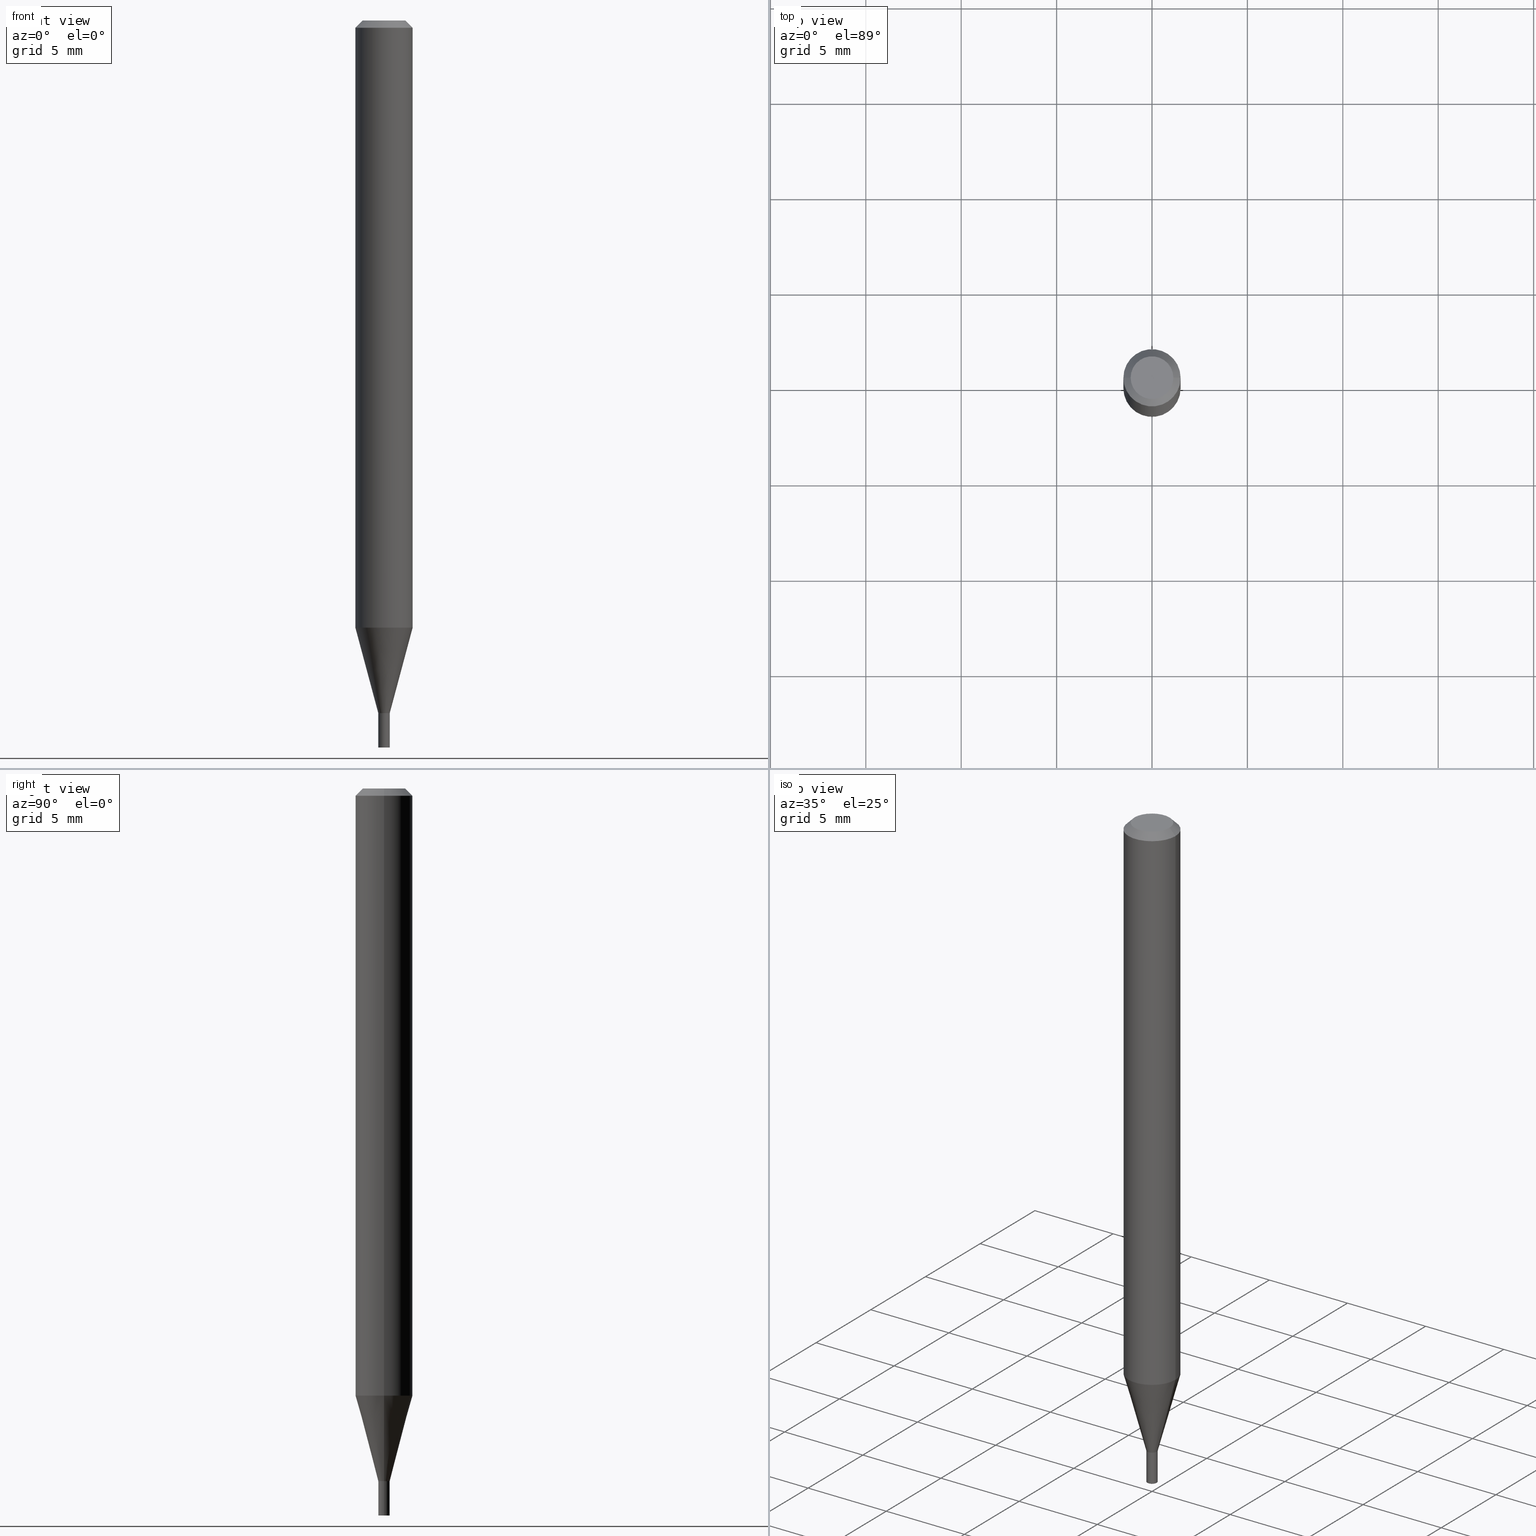
[diagram: canonical four-view strip — front | top / right | iso, engineering-drawing reading convention]
A machine part, canonical four-view strip (front | top / right | iso — engineering-drawing reading convention). The complete STEP part file that produces these views, byte-faithful:
ISO-10303-21;
HEADER;
FILE_DESCRIPTION (( 'STEP AP203' ),
    '1' );
FILE_NAME ('05095.STEP',
    '2024-03-14T17:50:56',
    ( '' ),
    ( '' ),
    'SwSTEP 2.0',
    'SolidWorks 2023',
    '' );
FILE_SCHEMA (( 'CONFIG_CONTROL_DESIGN' ));
ENDSEC;

DATA;
#1 = DIRECTION ( 'NONE',  ( -2.445468806185136877E-29, 3.491481338843145188E-15, 1.000000000000000000 ) ) ;
#2 = EDGE_LOOP ( 'NONE', ( #158, #462, #79, #194 ) ) ;
#3 = VERTEX_POINT ( 'NONE', #296 ) ;
#4 = CARTESIAN_POINT ( 'NONE',  ( 3.668203209277704895E-29, -5.237222008264718177E-15, -1.500000000000000222 ) ) ;
#5 = AXIS2_PLACEMENT_3D ( 'NONE', #250, #393, #71 ) ;
#6 =( GEOMETRIC_REPRESENTATION_CONTEXT ( 3 ) GLOBAL_UNCERTAINTY_ASSIGNED_CONTEXT ( ( #282 ) ) GLOBAL_UNIT_ASSIGNED_CONTEXT ( ( #381, #209, #240 ) ) REPRESENTATION_CONTEXT ( 'NONE', 'WORKASPACE' ) );
#7 = APPROVAL_PERSON_ORGANIZATION ( #229, #215, #129 ) ;
#8 = EDGE_CURVE ( 'NONE', #189, #307, #401, .T. ) ;
#9 = DATE_AND_TIME ( #342, #114 ) ;
#10 = APPLICATION_CONTEXT ( 'configuration controlled 3d designs of mechanical parts and assemblies' ) ;
#11 = PERSON_AND_ORGANIZATION_ROLE ( 'creator' ) ;
#12 = CLOSED_SHELL ( 'NONE', ( #199, #230, #245, #41, #95, #118, #313, #439, #344, #294, #72, #156 ) ) ;
#13 = VECTOR ( 'NONE', #238, 39.37007874015748143 ) ;
#14 = DIRECTION ( 'NONE',  ( 1.000000000000000000, -6.982962677686266711E-15, 4.876176775795935793E-29 ) ) ;
#15 = CC_DESIGN_APPROVAL ( #38, ( #338 ) ) ;
#16 = DIRECTION ( 'NONE',  ( -2.445468806185136597E-29, 3.491481338843145583E-15, 1.000000000000000000 ) ) ;
#17 = PERSON_AND_ORGANIZATION ( #78, #69 ) ;
#18 = CARTESIAN_POINT ( 'NONE',  ( 3.493596736516086700E-29, -4.987930240671318790E-15, -1.428600000000000092 ) ) ;
#19 = DIRECTION ( 'NONE',  ( -2.445468806185136877E-29, 3.491481338843145188E-15, 1.000000000000000000 ) ) ;
#20 = APPROVAL_STATUS ( 'not_yet_approved' ) ;
#21 = APPLICATION_PROTOCOL_DEFINITION ( 'international standard', 'config_control_design', 1994, #10 ) ;
#22 = EDGE_LOOP ( 'NONE', ( #430, #164 ) ) ;
#23 = PLANE ( 'NONE',  #24 ) ;
#24 = AXIS2_PLACEMENT_3D ( 'NONE', #106, #86, #299 ) ;
#25 = CARTESIAN_POINT ( 'NONE',  ( 3.668203209277704895E-29, -5.237222008264718177E-15, -1.500000000000000222 ) ) ;
#26 = PLANE ( 'NONE',  #361 ) ;
#27 = LINE ( 'NONE', #183, #171 ) ;
#28 = CARTESIAN_POINT ( 'NONE',  ( -0.05904999999999999832, 3.599717260347268549E-16, -0.01499999999999999944 ) ) ;
#29 = DIRECTION ( 'NONE',  ( -2.445468806185136877E-29, 3.491481338843145188E-15, 1.000000000000000000 ) ) ;
#30 = LINE ( 'NONE', #457, #134 ) ;
#31 = EDGE_LOOP ( 'NONE', ( #326, #46, #376, #188 ) ) ;
#32 = DIRECTION ( 'NONE',  ( 1.000000000000000000, -6.982962677686266711E-15, 4.876176775795935793E-29 ) ) ;
#33 = ADVANCED_FACE ( 'NONE', ( #247 ), #26, .F. ) ;
#34 = CIRCLE ( 'NONE', #304, 0.05904999999999999832 ) ;
#35 = ORIENTED_EDGE ( 'NONE', *, *, #333, .T. ) ;
#36 = DIRECTION ( 'NONE',  ( -2.445468806185136877E-29, 3.491481338843145188E-15, 1.000000000000000000 ) ) ;
#37 = ORIENTED_EDGE ( 'NONE', *, *, #60, .F. ) ;
#38 = APPROVAL ( #410, 'UNSPECIFIED' ) ;
#39 = DIRECTION ( 'NONE',  ( -2.445468806185136597E-29, 3.491481338843145583E-15, 1.000000000000000000 ) ) ;
#40 = ORIENTED_EDGE ( 'NONE', *, *, #395, .T. ) ;
#41 = ADVANCED_FACE ( 'NONE', ( #323 ), #452, .T. ) ;
#42 = CC_DESIGN_PERSON_AND_ORGANIZATION_ASSIGNMENT ( #142, #48, ( #338 ) ) ;
#43 = CONICAL_SURFACE ( 'NONE', #5, 0.01130000000000000102, 0.7853981633974718157 ) ;
#44 = CONICAL_SURFACE ( 'NONE', #180, 0.05904999999999999832, 0.7853981633974523868 ) ;
#45 = PERSON_AND_ORGANIZATION_ROLE ( 'design_owner' ) ;
#46 = ORIENTED_EDGE ( 'NONE', *, *, #221, .T. ) ;
#47 = DIRECTION ( 'NONE',  ( 0.2588190451025216832, 1.565188264969619798E-15, 0.9659258262890679791 ) ) ;
#48 = PERSON_AND_ORGANIZATION_ROLE ( 'classification_officer' ) ;
#49 = CARTESIAN_POINT ( 'NONE',  ( -0.05904999999999999832, 4.195754854663391478E-16, -2.904631170795521892E-30 ) ) ;
#50 = EDGE_LOOP ( 'NONE', ( #124, #225, #186, #360 ) ) ;
#51 = SHAPE_DEFINITION_REPRESENTATION ( #125, #220 ) ;
#52 = EDGE_CURVE ( 'NONE', #85, #117, #346, .T. ) ;
#53 = ORIENTED_EDGE ( 'NONE', *, *, #402, .T. ) ;
#54 = AXIS2_PLACEMENT_3D ( 'NONE', #4, #16, #173 ) ;
#55 = CARTESIAN_POINT ( 'NONE',  ( 0.05904999999999999832, -4.123439461173740327E-16, 2.879382386107500220E-30 ) ) ;
#56 = DATE_TIME_ROLE ( 'creation_date' ) ;
#57 = FACE_OUTER_BOUND ( 'NONE', #461, .T. ) ;
#58 = DIRECTION ( 'NONE',  ( 2.445468806185136597E-29, -3.491481338843145583E-15, -1.000000000000000000 ) ) ;
#59 = APPROVAL_DATE_TIME ( #305, #38 ) ;
#60 = EDGE_CURVE ( 'NONE', #235, #256, #30, .T. ) ;
#61 = DIRECTION ( 'NONE',  ( 1.000000000000000000, -6.982962677686298265E-15, 0.000000000000000000 ) ) ;
#62 = DIRECTION ( 'NONE',  ( -2.445468806185136597E-29, 3.491481338843145583E-15, 1.000000000000000000 ) ) ;
#63 = LINE ( 'NONE', #394, #349 ) ;
#64 = PRODUCT_DEFINITION ( 'UNKNOWN', '', #447, #300 ) ;
#65 = CONICAL_SURFACE ( 'NONE', #228, 0.01179999999999992340, 0.2617993877991502960 ) ;
#66 = MECHANICAL_CONTEXT ( 'NONE', #10, 'mechanical' ) ;
#67 = AXIS2_PLACEMENT_3D ( 'NONE', #18, #274, #368 ) ;
#68 = VECTOR ( 'NONE', #83, 39.37007874015748854 ) ;
#69 = ORGANIZATION ( 'UNSPECIFIED', 'UNSPECIFIED', '' ) ;
#70 = DIRECTION ( 'NONE',  ( 1.000000000000000000, -6.982962677686263555E-15, 0.000000000000000000 ) ) ;
#71 = DIRECTION ( 'NONE',  ( 1.000000000000000000, -6.982962677686254878E-15, 0.000000000000000000 ) ) ;
#72 = ADVANCED_FACE ( 'NONE', ( #285 ), #43, .T. ) ;
#73 = EDGE_CURVE ( 'NONE', #176, #307, #445, .T. ) ;
#74 = CIRCLE ( 'NONE', #258, 0.04404999999999999888 ) ;
#75 = AXIS2_PLACEMENT_3D ( 'NONE', #153, #213, #350 ) ;
#76 = ORIENTED_EDGE ( 'NONE', *, *, #73, .F. ) ;
#77 = EDGE_CURVE ( 'NONE', #343, #85, #74, .T. ) ;
#78 = PERSON ( 'UNSPECIFIED', 'UNSPECIFIED', 'UNSPECIFIED', ('UNSPECIFIED'), ('UNSPECIFIED'), ('UNSPECIFIED') ) ;
#79 = ORIENTED_EDGE ( 'NONE', *, *, #366, .T. ) ;
#80 = ORIENTED_EDGE ( 'NONE', *, *, #402, .F. ) ;
#81 = ORIENTED_EDGE ( 'NONE', *, *, #151, .T. ) ;
#82 = AXIS2_PLACEMENT_3D ( 'NONE', #270, #411, #97 ) ;
#83 = DIRECTION ( 'NONE',  ( 0.7071067811865503483, -7.319954787623265512E-15, -0.7071067811865445751 ) ) ;
#84 = DIRECTION ( 'NONE',  ( -2.445468806185136597E-29, 3.491481338843145583E-15, 1.000000000000000000 ) ) ;
#85 = VERTEX_POINT ( 'NONE', #340 ) ;
#86 = DIRECTION ( 'NONE',  ( -2.438088387897960049E-29, 3.491481338843145188E-15, 1.000000000000000000 ) ) ;
#87 = DIRECTION ( 'NONE',  ( 1.000000000000000000, -6.982962677686263555E-15, 0.000000000000000000 ) ) ;
#88 = PERSON_AND_ORGANIZATION_ROLE ( 'creator' ) ;
#89 = FACE_OUTER_BOUND ( 'NONE', #50, .T. ) ;
#90 = AXIS2_PLACEMENT_3D ( 'NONE', #385, #201, #301 ) ;
#91 = AXIS2_PLACEMENT_3D ( 'NONE', #441, #263, #231 ) ;
#92 = CARTESIAN_POINT ( 'NONE',  ( 0.000000000000000000, 0.000000000000000000, 0.000000000000000000 ) ) ;
#93 = ORIENTED_EDGE ( 'NONE', *, *, #324, .T. ) ;
#94 = APPROVAL_DATE_TIME ( #99, #215 ) ;
#95 = ADVANCED_FACE ( 'NONE', ( #57 ), #65, .T. ) ;
#96 = DIRECTION ( 'NONE',  ( 1.000000000000000000, -6.982962677686265922E-15, 4.888540261209747396E-29 ) ) ;
#97 = DIRECTION ( 'NONE',  ( 1.000000000000000000, -6.982962677686266711E-15, 0.000000000000000000 ) ) ;
#98 = LINE ( 'NONE', #55, #165 ) ;
#99 = DATE_AND_TIME ( #276, #144 ) ;
#100 = DIRECTION ( 'NONE',  ( -2.445468806185136597E-29, 3.491481338843145583E-15, 1.000000000000000000 ) ) ;
#101 = PRODUCT ( '05095', '05095', '', ( #66 ) ) ;
#102 = AXIS2_PLACEMENT_3D ( 'NONE', #261, #363, #87 ) ;
#103 = EDGE_CURVE ( 'NONE', #85, #343, #266, .T. ) ;
#104 = APPROVAL_PERSON_ORGANIZATION ( #262, #378, #105 ) ;
#105 = APPROVAL_ROLE ( '' ) ;
#106 = CARTESIAN_POINT ( 'NONE',  ( 3.494819470919178941E-29, -4.989675981340739504E-15, -1.429100000000000037 ) ) ;
#107 = FACE_OUTER_BOUND ( 'NONE', #31, .T. ) ;
#108 = FACE_OUTER_BOUND ( 'NONE', #357, .T. ) ;
#109 = ORIENTED_EDGE ( 'NONE', *, *, #155, .F. ) ;
#110 = MANIFOLD_SOLID_BREP ( 'Body-Move/Copy2[2]', #12 ) ;
#111 = DIRECTION ( 'NONE',  ( -0.2588190451025216832, 5.211531920934551831E-15, 0.9659258262890679791 ) ) ;
#112 = ORIENTED_EDGE ( 'NONE', *, *, #320, .F. ) ;
#113 = CIRCLE ( 'NONE', #75, 0.01180000000000000146 ) ;
#114 = LOCAL_TIME ( 13, 50, 56.00000000000000000, #177 ) ;
#115 = LINE ( 'NONE', #358, #418 ) ;
#116 = DIRECTION ( 'NONE',  ( -2.445468806185136597E-29, 3.491481338843145583E-15, 1.000000000000000000 ) ) ;
#117 = VERTEX_POINT ( 'NONE', #207 ) ;
#118 = ADVANCED_FACE ( 'NONE', ( #89 ), #341, .T. ) ;
#119 = AXIS2_PLACEMENT_3D ( 'NONE', #224, #39, #384 ) ;
#120 = FACE_OUTER_BOUND ( 'NONE', #325, .T. ) ;
#121 = ORIENTED_EDGE ( 'NONE', *, *, #374, .F. ) ;
#122 = ORIENTED_EDGE ( 'NONE', *, *, #211, .T. ) ;
#123 = FACE_OUTER_BOUND ( 'NONE', #399, .T. ) ;
#124 = ORIENTED_EDGE ( 'NONE', *, *, #8, .F. ) ;
#125 = PRODUCT_DEFINITION_SHAPE ( 'NONE', 'NONE',  #64 ) ;
#126 = CARTESIAN_POINT ( 'NONE',  ( 3.494819470919178941E-29, -4.989675981340739504E-15, -1.429100000000000037 ) ) ;
#127 = FACE_OUTER_BOUND ( 'NONE', #437, .T. ) ;
#128 = DIRECTION ( 'NONE',  ( 1.000000000000000000, -6.982962677686266711E-15, 4.876176775795936353E-29 ) ) ;
#129 = APPROVAL_ROLE ( '' ) ;
#130 =( LENGTH_UNIT ( ) NAMED_UNIT ( * ) SI_UNIT ( $, .METRE. ) );
#131 = CARTESIAN_POINT ( 'NONE',  ( 3.494819470919178941E-29, -4.989675981340739504E-15, -1.429100000000000037 ) ) ;
#132 = DIRECTION ( 'NONE',  ( -2.445468806185136597E-29, 3.491481338843145583E-15, 1.000000000000000000 ) ) ;
#133 = COORDINATED_UNIVERSAL_TIME_OFFSET ( 5, 0, .BEHIND. ) ;
#134 = VECTOR ( 'NONE', #149, 39.37007874015748143 ) ;
#135 = CIRCLE ( 'NONE', #389, 0.01180000000000000146 ) ;
#136 = CARTESIAN_POINT ( 'NONE',  ( 0.01179999999999992340, -5.070329200268016125E-15, -1.428600000000000092 ) ) ;
#137 = APPROVAL_PERSON_ORGANIZATION ( #383, #38, #373 ) ;
#138 = CARTESIAN_POINT ( 'NONE',  ( 0.05904999999999999832, -4.574846268510561447E-16, -0.01499999999999999944 ) ) ;
#139 = COORDINATED_UNIVERSAL_TIME_OFFSET ( 5, 0, .BEHIND. ) ;
#140 = EDGE_CURVE ( 'NONE', #256, #214, #406, .T. ) ;
#141 = ORIENTED_EDGE ( 'NONE', *, *, #73, .T. ) ;
#142 = PERSON_AND_ORGANIZATION ( #78, #69 ) ;
#143 = AXIS2_PLACEMENT_3D ( 'NONE', #145, #390, #246 ) ;
#144 = LOCAL_TIME ( 13, 50, 56.00000000000000000, #409 ) ;
#145 = CARTESIAN_POINT ( 'NONE',  ( 8.239895959673289540E-17, 0.01179999999999501066, -1.429100000000000037 ) ) ;
#146 = CARTESIAN_POINT ( 'NONE',  ( -0.01179999999999992340, -4.904086197851627524E-15, -1.428600000000000092 ) ) ;
#147 = DIRECTION ( 'NONE',  ( 1.000000000000000000, -6.982962677686298265E-15, 0.000000000000000000 ) ) ;
#148 = CARTESIAN_POINT ( 'NONE',  ( 3.668203209277705088E-31, -5.237222008264718399E-17, -0.01499999999999999944 ) ) ;
#149 = DIRECTION ( 'NONE',  ( -0.7071067811865642261, 7.493145998870414114E-15, 0.7071067811865309194 ) ) ;
#150 = CARTESIAN_POINT ( 'NONE',  ( 0.000000000000000000, 0.000000000000000000, 0.000000000000000000 ) ) ;
#151 = EDGE_CURVE ( 'NONE', #235, #433, #453, .T. ) ;
#152 = AXIS2_PLACEMENT_3D ( 'NONE', #218, #116, #147 ) ;
#153 = CARTESIAN_POINT ( 'NONE',  ( 3.494819470919178941E-29, -4.989675981340739504E-15, -1.429100000000000037 ) ) ;
#154 = DIRECTION ( 'NONE',  ( 0.7071067811865642261, -2.468850131082431399E-15, 0.7071067811865309194 ) ) ;
#155 = EDGE_CURVE ( 'NONE', #189, #248, #198, .T. ) ;
#156 = ADVANCED_FACE ( 'NONE', ( #272 ), #450, .F. ) ;
#157 = ORIENTED_EDGE ( 'NONE', *, *, #398, .T. ) ;
#158 = ORIENTED_EDGE ( 'NONE', *, *, #398, .F. ) ;
#159 = CIRCLE ( 'NONE', #152, 0.01180000000000000146 ) ;
#160 = ORIENTED_EDGE ( 'NONE', *, *, #281, .T. ) ;
#161 = ORIENTED_EDGE ( 'NONE', *, *, #103, .F. ) ;
#162 = ADVANCED_FACE ( 'NONE', ( #412 ), #234, .T. ) ;
#163 = VERTEX_POINT ( 'NONE', #271 ) ;
#164 = ORIENTED_EDGE ( 'NONE', *, *, #455, .F. ) ;
#165 = VECTOR ( 'NONE', #19, 39.37007874015748143 ) ;
#166 = CARTESIAN_POINT ( 'NONE',  ( 0.01130000000000000102, -5.068583459598594621E-15, -1.429100000000000037 ) ) ;
#167 = PERSON_AND_ORGANIZATION ( #78, #69 ) ;
#168 = EDGE_CURVE ( 'NONE', #176, #187, #98, .T. ) ;
#169 = CALENDAR_DATE ( 2024, 14, 3 ) ;
#170 = AXIS2_PLACEMENT_3D ( 'NONE', #310, #100, #242 ) ;
#171 = VECTOR ( 'NONE', #29, 39.37007874015748143 ) ;
#172 = ORIENTED_EDGE ( 'NONE', *, *, #333, .F. ) ;
#173 = DIRECTION ( 'NONE',  ( 1.000000000000000000, -6.982962677686298265E-15, 0.000000000000000000 ) ) ;
#174 = PERSON_AND_ORGANIZATION ( #78, #69 ) ;
#175 = CARTESIAN_POINT ( 'NONE',  ( 0.05904999999999999832, -4.786334200759217729E-15, -1.252760599342370940 ) ) ;
#176 = VERTEX_POINT ( 'NONE', #175 ) ;
#177 = COORDINATED_UNIVERSAL_TIME_OFFSET ( 5, 0, .BEHIND. ) ;
#178 = CARTESIAN_POINT ( 'NONE',  ( 0.000000000000000000, 0.000000000000000000, 0.000000000000000000 ) ) ;
#179 = CARTESIAN_POINT ( 'NONE',  ( -0.01130000000000000102, -4.906735425025737936E-15, -1.429100000000000037 ) ) ;
#180 = AXIS2_PLACEMENT_3D ( 'NONE', #337, #193, #332 ) ;
#181 = CC_DESIGN_APPROVAL ( #378, ( #64 ) ) ;
#182 = CARTESIAN_POINT ( 'NONE',  ( 3.576687321579069994E-29, -5.368277968210015545E-15, -1.500000000000000222 ) ) ;
#183 = CARTESIAN_POINT ( 'NONE',  ( 0.01179999999999992340, -8.239895959669740898E-17, 5.753888595439167115E-31 ) ) ;
#184 = CC_DESIGN_PERSON_AND_ORGANIZATION_ASSIGNMENT ( #174, #415, ( #447 ) ) ;
#185 = CIRCLE ( 'NONE', #335, 0.05904999999999999832 ) ;
#186 = ORIENTED_EDGE ( 'NONE', *, *, #320, .T. ) ;
#187 = VERTEX_POINT ( 'NONE', #311 ) ;
#188 = ORIENTED_EDGE ( 'NONE', *, *, #52, .F. ) ;
#189 = VERTEX_POINT ( 'NONE', #417 ) ;
#190 = CIRCLE ( 'NONE', #424, 0.01130000000000000102 ) ;
#191 = LOCAL_TIME ( 13, 50, 56.00000000000000000, #139 ) ;
#192 = CARTESIAN_POINT ( 'NONE',  ( 0.01179999999999992340, -5.072074940937436839E-15, -1.429100000000000037 ) ) ;
#193 = DIRECTION ( 'NONE',  ( 2.445468806185136597E-29, -3.491481338843145583E-15, -1.000000000000000000 ) ) ;
#194 = ORIENTED_EDGE ( 'NONE', *, *, #316, .T. ) ;
#195 = CC_DESIGN_PERSON_AND_ORGANIZATION_ASSIGNMENT ( #167, #11, ( #447 ) ) ;
#196 = ORIENTED_EDGE ( 'NONE', *, *, #219, .T. ) ;
#197 = CYLINDRICAL_SURFACE ( 'NONE', #212, 0.05904999999999999832 ) ;
#198 = CIRCLE ( 'NONE', #278, 0.01179999999999992340 ) ;
#199 = ADVANCED_FACE ( 'NONE', ( #322 ), #318, .F. ) ;
#200 = CC_DESIGN_DATE_AND_TIME_ASSIGNMENT ( #268, #302, ( #338 ) ) ;
#201 = DIRECTION ( 'NONE',  ( -2.445468806185136597E-29, 3.491481338843145583E-15, 1.000000000000000000 ) ) ;
#202 = ORIENTED_EDGE ( 'NONE', *, *, #52, .T. ) ;
#203 = VECTOR ( 'NONE', #111, 39.37007874015748143 ) ;
#204 = CIRCLE ( 'NONE', #82, 0.05904999999999999832 ) ;
#205 = APPROVAL_STATUS ( 'not_yet_approved' ) ;
#206 = CARTESIAN_POINT ( 'NONE',  ( 0.01180000000000000146, -5.319620967861417089E-15, -1.500000000000000222 ) ) ;
#207 = CARTESIAN_POINT ( 'NONE',  ( -0.05904999999999999832, -1.793605751895906043E-15, -0.01499999999999999944 ) ) ;
#208 = DIRECTION ( 'NONE',  ( -1.000000000000000000, 6.982962677686266711E-15, 0.000000000000000000 ) ) ;
#209 =( NAMED_UNIT ( * ) PLANE_ANGLE_UNIT ( ) SI_UNIT ( $, .RADIAN. ) );
#210 = PLANE ( 'NONE',  #143 ) ;
#211 = EDGE_CURVE ( 'NONE', #307, #117, #364, .T. ) ;
#212 = AXIS2_PLACEMENT_3D ( 'NONE', #336, #84, #128 ) ;
#213 = DIRECTION ( 'NONE',  ( -2.445468806185136597E-29, 3.491481338843145583E-15, 1.000000000000000000 ) ) ;
#214 = VERTEX_POINT ( 'NONE', #136 ) ;
#215 = APPROVAL ( #205, 'UNSPECIFIED' ) ;
#216 = CARTESIAN_POINT ( 'NONE',  ( 3.063586967309564449E-29, -4.373990254641843598E-15, -1.252760599342370940 ) ) ;
#217 = ORIENTED_EDGE ( 'NONE', *, *, #239, .T. ) ;
#218 = CARTESIAN_POINT ( 'NONE',  ( 3.494819470919178941E-29, -4.989675981340739504E-15, -1.429100000000000037 ) ) ;
#219 = EDGE_CURVE ( 'NONE', #117, #187, #204, .T. ) ;
#220 = ADVANCED_BREP_SHAPE_REPRESENTATION ( '05095', ( #407, #110, #91 ), #6 ) ;
#221 = EDGE_CURVE ( 'NONE', #343, #187, #379, .T. ) ;
#222 = ORIENTED_EDGE ( 'NONE', *, *, #151, .F. ) ;
#223 = AXIS2_PLACEMENT_3D ( 'NONE', #353, #388, #319 ) ;
#224 = CARTESIAN_POINT ( 'NONE',  ( 3.494819470919178941E-29, -4.989675981340739504E-15, -1.429100000000000037 ) ) ;
#225 = ORIENTED_EDGE ( 'NONE', *, *, #155, .T. ) ;
#226 = ORIENTED_EDGE ( 'NONE', *, *, #103, .T. ) ;
#227 = LINE ( 'NONE', #192, #269 ) ;
#228 = AXIS2_PLACEMENT_3D ( 'NONE', #131, #264, #380 ) ;
#229 = PERSON_AND_ORGANIZATION ( #78, #69 ) ;
#230 = ADVANCED_FACE ( 'NONE', ( #127 ), #436, .T. ) ;
#231 = DIRECTION ( 'NONE',  ( 1.000000000000000000, 0.000000000000000000, 0.000000000000000000 ) ) ;
#232 = CIRCLE ( 'NONE', #54, 0.01180000000000000146 ) ;
#233 = CARTESIAN_POINT ( 'NONE',  ( 3.494819470919178941E-29, -4.989675981340739504E-15, -1.429100000000000037 ) ) ;
#234 = CYLINDRICAL_SURFACE ( 'NONE', #465, 0.01180000000000000146 ) ;
#235 = VERTEX_POINT ( 'NONE', #179 ) ;
#236 = COORDINATED_UNIVERSAL_TIME_OFFSET ( 5, 0, .BEHIND. ) ;
#237 = DIRECTION ( 'NONE',  ( -2.445468806185136597E-29, 3.491481338843145583E-15, 1.000000000000000000 ) ) ;
#238 = DIRECTION ( 'NONE',  ( -2.445468806185136877E-29, 3.491481338843145188E-15, 1.000000000000000000 ) ) ;
#239 = EDGE_CURVE ( 'NONE', #408, #438, #392, .T. ) ;
#240 =( NAMED_UNIT ( * ) SI_UNIT ( $, .STERADIAN. ) SOLID_ANGLE_UNIT ( ) );
#241 = CIRCLE ( 'NONE', #321, 0.01179999999999992340 ) ;
#242 = DIRECTION ( 'NONE',  ( 1.000000000000000000, -6.982962677686265922E-15, 4.888540261209747396E-29 ) ) ;
#243 = CARTESIAN_POINT ( 'NONE',  ( 0.01180000000000000146, -8.239895959669796365E-17, 5.753888595439204775E-31 ) ) ;
#244 = DIRECTION ( 'NONE',  ( -2.445468806185136597E-29, 3.491481338843145583E-15, 1.000000000000000000 ) ) ;
#245 = ADVANCED_FACE ( 'NONE', ( #107 ), #298, .T. ) ;
#246 = DIRECTION ( 'NONE',  ( -1.000000000000000000, 6.982962677686265922E-15, -4.876176775795935793E-29 ) ) ;
#247 = FACE_OUTER_BOUND ( 'NONE', #22, .T. ) ;
#248 = VERTEX_POINT ( 'NONE', #347 ) ;
#249 = AXIS2_PLACEMENT_3D ( 'NONE', #148, #58, #208 ) ;
#250 = CARTESIAN_POINT ( 'NONE',  ( 3.494819470919178941E-29, -4.989675981340739504E-15, -1.429100000000000037 ) ) ;
#251 = ORIENTED_EDGE ( 'NONE', *, *, #211, .F. ) ;
#252 = CLOSED_SHELL ( 'NONE', ( #416, #33, #162, #434 ) ) ;
#253 = CIRCLE ( 'NONE', #102, 0.01179999999999992340 ) ;
#254 = ORIENTED_EDGE ( 'NONE', *, *, #168, .F. ) ;
#255 = EDGE_LOOP ( 'NONE', ( #431, #161, #202, #196 ) ) ;
#256 = VERTEX_POINT ( 'NONE', #146 ) ;
#257 = ORIENTED_EDGE ( 'NONE', *, *, #352, .F. ) ;
#258 = AXIS2_PLACEMENT_3D ( 'NONE', #442, #237, #96 ) ;
#259 = EDGE_LOOP ( 'NONE', ( #37, #81, #160, #422 ) ) ;
#260 = EDGE_LOOP ( 'NONE', ( #172, #371, #217, #257 ) ) ;
#261 = CARTESIAN_POINT ( 'NONE',  ( 3.493596736516086700E-29, -4.987930240671318790E-15, -1.428600000000000092 ) ) ;
#262 = PERSON_AND_ORGANIZATION ( #78, #69 ) ;
#263 = DIRECTION ( 'NONE',  ( 0.000000000000000000, 0.000000000000000000, 1.000000000000000000 ) ) ;
#264 = DIRECTION ( 'NONE',  ( -2.445468806185136597E-29, 3.491481338843145583E-15, 1.000000000000000000 ) ) ;
#265 = DIRECTION ( 'NONE',  ( -2.445468806185136597E-29, 3.491481338843145583E-15, 1.000000000000000000 ) ) ;
#266 = CIRCLE ( 'NONE', #170, 0.04404999999999999888 ) ;
#267 = ORIENTED_EDGE ( 'NONE', *, *, #366, .F. ) ;
#268 = DATE_AND_TIME ( #448, #191 ) ;
#269 = VECTOR ( 'NONE', #47, 39.37007874015748143 ) ;
#270 = CARTESIAN_POINT ( 'NONE',  ( 3.668203209277705088E-31, -5.237222008264718399E-17, -0.01499999999999999944 ) ) ;
#271 = CARTESIAN_POINT ( 'NONE',  ( -0.01180000000000000146, -5.029604951983037970E-15, -1.429100000000000037 ) ) ;
#272 = FACE_OUTER_BOUND ( 'NONE', #2, .T. ) ;
#273 = ORIENTED_EDGE ( 'NONE', *, *, #395, .F. ) ;
#274 = DIRECTION ( 'NONE',  ( -2.445468806185136597E-29, 3.491481338843145583E-15, 1.000000000000000000 ) ) ;
#275 = DIRECTION ( 'NONE',  ( 1.000000000000000000, -6.982962677686263555E-15, 0.000000000000000000 ) ) ;
#276 = CALENDAR_DATE ( 2024, 14, 3 ) ;
#277 = AXIS2_PLACEMENT_3D ( 'NONE', #150, #428, #397 ) ;
#278 = AXIS2_PLACEMENT_3D ( 'NONE', #443, #132, #275 ) ;
#279 = APPLICATION_CONTEXT ( 'configuration controlled 3d designs of mechanical parts and assemblies' ) ;
#280 = CC_DESIGN_APPROVAL ( #215, ( #447 ) ) ;
#281 = EDGE_CURVE ( 'NONE', #433, #214, #421, .T. ) ;
#282 = UNCERTAINTY_MEASURE_WITH_UNIT (LENGTH_MEASURE( 1.000000000000000082E-05 ), #381, 'distance_accuracy_value', 'NONE');
#283 = PLANE ( 'NONE',  #223 ) ;
#284 = FACE_OUTER_BOUND ( 'NONE', #429, .T. ) ;
#285 = FACE_OUTER_BOUND ( 'NONE', #259, .T. ) ;
#286 = CARTESIAN_POINT ( 'NONE',  ( 0.01130000000000000102, -5.068583459598594621E-15, -1.429100000000000037 ) ) ;
#287 = CARTESIAN_POINT ( 'NONE',  ( 3.494819470919178941E-29, -4.989675981340739504E-15, -1.429100000000000037 ) ) ;
#288 = ORIENTED_EDGE ( 'NONE', *, *, #140, .T. ) ;
#289 = DIRECTION ( 'NONE',  ( 1.000000000000000000, -6.982962677686254878E-15, 0.000000000000000000 ) ) ;
#290 = CARTESIAN_POINT ( 'NONE',  ( 0.04404999999999999888, -3.798447818264462051E-16, -1.195205392989686680E-16 ) ) ;
#291 = ORIENTED_EDGE ( 'NONE', *, *, #60, .T. ) ;
#292 = EDGE_LOOP ( 'NONE', ( #109, #157, #288, #267 ) ) ;
#293 = ORIENTED_EDGE ( 'NONE', *, *, #352, .T. ) ;
#294 = ADVANCED_FACE ( 'NONE', ( #120 ), #23, .F. ) ;
#295 = DIRECTION ( 'NONE',  ( 1.000000000000000000, -6.982962677686273021E-15, 0.000000000000000000 ) ) ;
#296 = CARTESIAN_POINT ( 'NONE',  ( -0.01180000000000000146, -5.029604951983037970E-15, -1.500000000000000222 ) ) ;
#297 = PERSON_AND_ORGANIZATION ( #78, #69 ) ;
#298 = CONICAL_SURFACE ( 'NONE', #249, 0.05904999999999999832, 0.7853981633974523868 ) ;
#299 = DIRECTION ( 'NONE',  ( 1.000000000000000000, -6.982962677686265922E-15, 4.876176775795935793E-29 ) ) ;
#300 = DESIGN_CONTEXT ( 'detailed design', #279, 'design' ) ;
#301 = DIRECTION ( 'NONE',  ( 1.000000000000000000, -6.982962677686254878E-15, 0.000000000000000000 ) ) ;
#302 = DATE_TIME_ROLE ( 'classification_date' ) ;
#303 = ORIENTED_EDGE ( 'NONE', *, *, #427, .T. ) ;
#304 = AXIS2_PLACEMENT_3D ( 'NONE', #331, #466, #295 ) ;
#305 = DATE_AND_TIME ( #377, #315 ) ;
#306 = DIRECTION ( 'NONE',  ( -2.445468806185136597E-29, 3.491481338843145583E-15, 1.000000000000000000 ) ) ;
#307 = VERTEX_POINT ( 'NONE', #372 ) ;
#308 = SECURITY_CLASSIFICATION_LEVEL ( 'unclassified' ) ;
#309 = CC_DESIGN_PERSON_AND_ORGANIZATION_ASSIGNMENT ( #297, #45, ( #101 ) ) ;
#310 = CARTESIAN_POINT ( 'NONE',  ( 2.922837505540584805E-45, -4.173037325708263829E-31, -1.195205392989710839E-16 ) ) ;
#311 = CARTESIAN_POINT ( 'NONE',  ( 0.05904999999999999832, -4.647161662000212105E-16, -0.01499999999999999944 ) ) ;
#312 = APPROVAL_DATE_TIME ( #9, #378 ) ;
#313 = ADVANCED_FACE ( 'NONE', ( #123 ), #197, .T. ) ;
#314 = VECTOR ( 'NONE', #154, 39.37007874015748143 ) ;
#315 = LOCAL_TIME ( 13, 50, 56.00000000000000000, #236 ) ;
#316 = EDGE_CURVE ( 'NONE', #214, #256, #253, .T. ) ;
#317 = DIRECTION ( 'NONE',  ( -0.7071067811865503483, 2.468850131082286643E-15, -0.7071067811865445751 ) ) ;
#318 = CYLINDRICAL_SURFACE ( 'NONE', #446, 0.01179999999999992340 ) ;
#319 = DIRECTION ( 'NONE',  ( -1.000000000000000000, 6.982962677686265922E-15, -4.876176775795935793E-29 ) ) ;
#320 = EDGE_CURVE ( 'NONE', #248, #176, #227, .T. ) ;
#321 = AXIS2_PLACEMENT_3D ( 'NONE', #126, #334, #435 ) ;
#322 = FACE_OUTER_BOUND ( 'NONE', #292, .T. ) ;
#323 = FACE_OUTER_BOUND ( 'NONE', #365, .T. ) ;
#324 = EDGE_CURVE ( 'NONE', #307, #176, #34, .T. ) ;
#325 = EDGE_LOOP ( 'NONE', ( #273, #222 ) ) ;
#326 = ORIENTED_EDGE ( 'NONE', *, *, #77, .F. ) ;
#327 = VECTOR ( 'NONE', #317, 39.37007874015748854 ) ;
#328 = AXIS2_PLACEMENT_3D ( 'NONE', #92, #265, #14 ) ;
#329 = ORIENTED_EDGE ( 'NONE', *, *, #168, .T. ) ;
#330 = VECTOR ( 'NONE', #1, 39.37007874015748143 ) ;
#331 = CARTESIAN_POINT ( 'NONE',  ( 3.063586967309564449E-29, -4.373990254641843598E-15, -1.252760599342370940 ) ) ;
#332 = DIRECTION ( 'NONE',  ( -1.000000000000000000, 6.982962677686266711E-15, 0.000000000000000000 ) ) ;
#333 = EDGE_CURVE ( 'NONE', #3, #163, #63, .T. ) ;
#334 = DIRECTION ( 'NONE',  ( -2.445468806185136597E-29, 3.491481338843145583E-15, 1.000000000000000000 ) ) ;
#335 = AXIS2_PLACEMENT_3D ( 'NONE', #396, #449, #386 ) ;
#336 = CARTESIAN_POINT ( 'NONE',  ( 0.000000000000000000, 0.000000000000000000, 0.000000000000000000 ) ) ;
#337 = CARTESIAN_POINT ( 'NONE',  ( 3.668203209277705088E-31, -5.237222008264718399E-17, -0.01499999999999999944 ) ) ;
#338 = SECURITY_CLASSIFICATION ( '', '', #308 ) ;
#339 = ORIENTED_EDGE ( 'NONE', *, *, #219, .F. ) ;
#340 = CARTESIAN_POINT ( 'NONE',  ( -0.04404999999999999888, 3.337856159934032167E-16, -1.195205392989733272E-16 ) ) ;
#341 = CONICAL_SURFACE ( 'NONE', #432, 0.01179999999999992340, 0.2617993877991502960 ) ;
#342 = CALENDAR_DATE ( 2024, 14, 3 ) ;
#343 = VERTEX_POINT ( 'NONE', #290 ) ;
#344 = ADVANCED_FACE ( 'NONE', ( #108 ), #283, .F. ) ;
#345 = CYLINDRICAL_SURFACE ( 'NONE', #369, 0.01180000000000000146 ) ;
#346 = LINE ( 'NONE', #28, #327 ) ;
#347 = CARTESIAN_POINT ( 'NONE',  ( 0.01179999999999992340, -5.072074940937436839E-15, -1.429100000000000037 ) ) ;
#348 = EDGE_LOOP ( 'NONE', ( #53, #293 ) ) ;
#349 = VECTOR ( 'NONE', #355, 39.37007874015748143 ) ;
#350 = DIRECTION ( 'NONE',  ( 1.000000000000000000, -6.982962677686298265E-15, 0.000000000000000000 ) ) ;
#351 = DIRECTION ( 'NONE',  ( -2.445468806185136597E-29, 3.491481338843145583E-15, 1.000000000000000000 ) ) ;
#352 = EDGE_CURVE ( 'NONE', #163, #438, #113, .T. ) ;
#353 = CARTESIAN_POINT ( 'NONE',  ( 3.075995059520799729E-16, 0.04404999999999999888, -2.135600226255260954E-16 ) ) ;
#354 = DIRECTION ( 'NONE',  ( -2.438088387897960049E-29, 3.491481338843145188E-15, 1.000000000000000000 ) ) ;
#355 = DIRECTION ( 'NONE',  ( -2.445468806185136877E-29, 3.491481338843145188E-15, 1.000000000000000000 ) ) ;
#356 = CC_DESIGN_SECURITY_CLASSIFICATION ( #338, ( #447 ) ) ;
#357 = EDGE_LOOP ( 'NONE', ( #226, #400 ) ) ;
#358 = CARTESIAN_POINT ( 'NONE',  ( -0.01179999999999992340, 8.384404281969127764E-17, -5.804343406500751356E-31 ) ) ;
#359 = ORIENTED_EDGE ( 'NONE', *, *, #239, .F. ) ;
#360 = ORIENTED_EDGE ( 'NONE', *, *, #324, .F. ) ;
#361 = AXIS2_PLACEMENT_3D ( 'NONE', #182, #354, #458 ) ;
#362 = LOCAL_TIME ( 13, 50, 56.00000000000000000, #133 ) ;
#363 = DIRECTION ( 'NONE',  ( -2.445468806185136597E-29, 3.491481338843145583E-15, 1.000000000000000000 ) ) ;
#364 = LINE ( 'NONE', #49, #330 ) ;
#365 = EDGE_LOOP ( 'NONE', ( #141, #122, #121, #254 ) ) ;
#366 = EDGE_CURVE ( 'NONE', #248, #214, #27, .T. ) ;
#367 = DIRECTION ( 'NONE',  ( 1.000000000000000000, -6.982962677686273021E-15, 0.000000000000000000 ) ) ;
#368 = DIRECTION ( 'NONE',  ( 1.000000000000000000, -6.982962677686263555E-15, 0.000000000000000000 ) ) ;
#369 = AXIS2_PLACEMENT_3D ( 'NONE', #178, #423, #391 ) ;
#370 = CARTESIAN_POINT ( 'NONE',  ( -0.01179999999999992340, -4.905831938521049028E-15, -1.429100000000000037 ) ) ;
#371 = ORIENTED_EDGE ( 'NONE', *, *, #455, .T. ) ;
#372 = CARTESIAN_POINT ( 'NONE',  ( -0.05904999999999999832, -3.954414769175504894E-15, -1.252760599342370940 ) ) ;
#373 = APPROVAL_ROLE ( '' ) ;
#374 = EDGE_CURVE ( 'NONE', #187, #117, #185, .T. ) ;
#375 = CARTESIAN_POINT ( 'NONE',  ( 0.000000000000000000, 0.000000000000000000, 0.000000000000000000 ) ) ;
#376 = ORIENTED_EDGE ( 'NONE', *, *, #374, .T. ) ;
#377 = CALENDAR_DATE ( 2024, 14, 3 ) ;
#378 = APPROVAL ( #20, 'UNSPECIFIED' ) ;
#379 = LINE ( 'NONE', #138, #68 ) ;
#380 = DIRECTION ( 'NONE',  ( 1.000000000000000000, -6.982962677686263555E-15, 0.000000000000000000 ) ) ;
#381 =( CONVERSION_BASED_UNIT ( 'INCH', #414 ) LENGTH_UNIT ( ) NAMED_UNIT ( #405 ) );
#382 = DIRECTION ( 'NONE',  ( 1.000000000000000000, -6.982962677686267499E-15, 4.876176775795935793E-29 ) ) ;
#383 = PERSON_AND_ORGANIZATION ( #78, #69 ) ;
#384 = DIRECTION ( 'NONE',  ( 1.000000000000000000, -6.982962677686254878E-15, 0.000000000000000000 ) ) ;
#385 = CARTESIAN_POINT ( 'NONE',  ( 3.494819470919178941E-29, -4.989675981340739504E-15, -1.429100000000000037 ) ) ;
#386 = DIRECTION ( 'NONE',  ( 1.000000000000000000, -6.982962677686266711E-15, 0.000000000000000000 ) ) ;
#387 = CARTESIAN_POINT ( 'NONE',  ( 0.01180000000000000146, -5.072074940937438417E-15, -1.429100000000000037 ) ) ;
#388 = DIRECTION ( 'NONE',  ( 2.438088387897960049E-29, -3.491481338843145188E-15, -1.000000000000000000 ) ) ;
#389 = AXIS2_PLACEMENT_3D ( 'NONE', #25, #454, #61 ) ;
#390 = DIRECTION ( 'NONE',  ( 2.438088387897960049E-29, -3.491481338843145188E-15, -1.000000000000000000 ) ) ;
#391 = DIRECTION ( 'NONE',  ( 1.000000000000000000, -6.982962677686267499E-15, 4.876176775795935793E-29 ) ) ;
#392 = LINE ( 'NONE', #243, #13 ) ;
#393 = DIRECTION ( 'NONE',  ( -2.445468806185136597E-29, 3.491481338843145583E-15, 1.000000000000000000 ) ) ;
#394 = CARTESIAN_POINT ( 'NONE',  ( -0.01180000000000000146, 8.384404281969183231E-17, -5.804343406500789016E-31 ) ) ;
#395 = EDGE_CURVE ( 'NONE', #433, #235, #190, .T. ) ;
#396 = CARTESIAN_POINT ( 'NONE',  ( 3.668203209277705088E-31, -5.237222008264718399E-17, -0.01499999999999999944 ) ) ;
#397 = DIRECTION ( 'NONE',  ( 1.000000000000000000, -6.982962677686266711E-15, 4.876176775795936353E-29 ) ) ;
#398 = EDGE_CURVE ( 'NONE', #189, #256, #115, .T. ) ;
#399 = EDGE_LOOP ( 'NONE', ( #251, #93, #329, #339 ) ) ;
#400 = ORIENTED_EDGE ( 'NONE', *, *, #77, .T. ) ;
#401 = LINE ( 'NONE', #370, #203 ) ;
#402 = EDGE_CURVE ( 'NONE', #438, #163, #159, .T. ) ;
#403 = ORIENTED_EDGE ( 'NONE', *, *, #460, .T. ) ;
#404 = ORIENTED_EDGE ( 'NONE', *, *, #281, .F. ) ;
#405 = DIMENSIONAL_EXPONENTS ( 1.000000000000000000, 0.000000000000000000, 0.000000000000000000, 0.000000000000000000, 0.000000000000000000, 0.000000000000000000, 0.000000000000000000 ) ;
#406 = CIRCLE ( 'NONE', #67, 0.01179999999999992340 ) ;
#407 = MANIFOLD_SOLID_BREP ( 'Body-Move/Copy2[1]', #252 ) ;
#408 = VERTEX_POINT ( 'NONE', #206 ) ;
#409 = COORDINATED_UNIVERSAL_TIME_OFFSET ( 5, 0, .BEHIND. ) ;
#410 = APPROVAL_STATUS ( 'not_yet_approved' ) ;
#411 = DIRECTION ( 'NONE',  ( -2.445468806185136597E-29, 3.491481338843145583E-15, 1.000000000000000000 ) ) ;
#412 = FACE_OUTER_BOUND ( 'NONE', #260, .T. ) ;
#413 = ORIENTED_EDGE ( 'NONE', *, *, #8, .T. ) ;
#414 = LENGTH_MEASURE_WITH_UNIT ( LENGTH_MEASURE( 0.02539999999999999897 ), #130 );
#415 = PERSON_AND_ORGANIZATION_ROLE ( 'design_supplier' ) ;
#416 = ADVANCED_FACE ( 'NONE', ( #284 ), #345, .T. ) ;
#417 = CARTESIAN_POINT ( 'NONE',  ( -0.01179999999999992340, -4.430123353848276172E-15, -1.429100000000000037 ) ) ;
#418 = VECTOR ( 'NONE', #36, 39.37007874015748143 ) ;
#419 = DATE_AND_TIME ( #169, #362 ) ;
#420 = FACE_OUTER_BOUND ( 'NONE', #348, .T. ) ;
#421 = LINE ( 'NONE', #166, #314 ) ;
#422 = ORIENTED_EDGE ( 'NONE', *, *, #140, .F. ) ;
#423 = DIRECTION ( 'NONE',  ( -2.445468806185136597E-29, 3.491481338843145583E-15, 1.000000000000000000 ) ) ;
#424 = AXIS2_PLACEMENT_3D ( 'NONE', #287, #426, #289 ) ;
#425 = PRODUCT_RELATED_PRODUCT_CATEGORY ( 'detail', '', ( #101 ) ) ;
#426 = DIRECTION ( 'NONE',  ( -2.445468806185136597E-29, 3.491481338843145583E-15, 1.000000000000000000 ) ) ;
#427 = EDGE_CURVE ( 'NONE', #408, #3, #135, .T. ) ;
#428 = DIRECTION ( 'NONE',  ( -2.445468806185136597E-29, 3.491481338843145583E-15, 1.000000000000000000 ) ) ;
#429 = EDGE_LOOP ( 'NONE', ( #303, #35, #80, #359 ) ) ;
#430 = ORIENTED_EDGE ( 'NONE', *, *, #427, .F. ) ;
#431 = ORIENTED_EDGE ( 'NONE', *, *, #221, .F. ) ;
#432 = AXIS2_PLACEMENT_3D ( 'NONE', #233, #244, #70 ) ;
#433 = VERTEX_POINT ( 'NONE', #286 ) ;
#434 = ADVANCED_FACE ( 'NONE', ( #420 ), #210, .F. ) ;
#435 = DIRECTION ( 'NONE',  ( 1.000000000000000000, -6.982962677686263555E-15, 0.000000000000000000 ) ) ;
#436 = CONICAL_SURFACE ( 'NONE', #119, 0.01130000000000000102, 0.7853981633974718157 ) ;
#437 = EDGE_LOOP ( 'NONE', ( #40, #291, #463, #404 ) ) ;
#438 = VERTEX_POINT ( 'NONE', #387 ) ;
#439 = ADVANCED_FACE ( 'NONE', ( #456 ), #44, .T. ) ;
#440 = APPLICATION_PROTOCOL_DEFINITION ( 'international standard', 'config_control_design', 1994, #279 ) ;
#441 = CARTESIAN_POINT ( 'NONE',  ( 0.000000000000000000, 0.000000000000000000, 0.000000000000000000 ) ) ;
#442 = CARTESIAN_POINT ( 'NONE',  ( 2.922837505540584805E-45, -4.173037325708263829E-31, -1.195205392989710839E-16 ) ) ;
#443 = CARTESIAN_POINT ( 'NONE',  ( 3.494819470919178941E-29, -4.989675981340739504E-15, -1.429100000000000037 ) ) ;
#444 = CC_DESIGN_DATE_AND_TIME_ASSIGNMENT ( #419, #56, ( #64 ) ) ;
#445 = CIRCLE ( 'NONE', #464, 0.05904999999999999832 ) ;
#446 = AXIS2_PLACEMENT_3D ( 'NONE', #459, #62, #32 ) ;
#447 = PRODUCT_DEFINITION_FORMATION_WITH_SPECIFIED_SOURCE ( 'ANY', '', #101, .NOT_KNOWN. ) ;
#448 = CALENDAR_DATE ( 2024, 14, 3 ) ;
#449 = DIRECTION ( 'NONE',  ( -2.445468806185136597E-29, 3.491481338843145583E-15, 1.000000000000000000 ) ) ;
#450 = CYLINDRICAL_SURFACE ( 'NONE', #328, 0.01179999999999992340 ) ;
#451 = CC_DESIGN_PERSON_AND_ORGANIZATION_ASSIGNMENT ( #17, #88, ( #64 ) ) ;
#452 = CYLINDRICAL_SURFACE ( 'NONE', #277, 0.05904999999999999832 ) ;
#453 = CIRCLE ( 'NONE', #90, 0.01130000000000000102 ) ;
#454 = DIRECTION ( 'NONE',  ( -2.445468806185136597E-29, 3.491481338843145583E-15, 1.000000000000000000 ) ) ;
#455 = EDGE_CURVE ( 'NONE', #3, #408, #232, .T. ) ;
#456 = FACE_OUTER_BOUND ( 'NONE', #255, .T. ) ;
#457 = CARTESIAN_POINT ( 'NONE',  ( -0.01130000000000000102, -4.909384652199849138E-15, -1.429100000000000037 ) ) ;
#458 = DIRECTION ( 'NONE',  ( 1.000000000000000000, -6.982962677686265922E-15, 4.876176775795935793E-29 ) ) ;
#459 = CARTESIAN_POINT ( 'NONE',  ( 0.000000000000000000, 0.000000000000000000, 0.000000000000000000 ) ) ;
#460 = EDGE_CURVE ( 'NONE', #248, #189, #241, .T. ) ;
#461 = EDGE_LOOP ( 'NONE', ( #403, #413, #76, #112 ) ) ;
#462 = ORIENTED_EDGE ( 'NONE', *, *, #460, .F. ) ;
#463 = ORIENTED_EDGE ( 'NONE', *, *, #316, .F. ) ;
#464 = AXIS2_PLACEMENT_3D ( 'NONE', #216, #351, #367 ) ;
#465 = AXIS2_PLACEMENT_3D ( 'NONE', #375, #306, #382 ) ;
#466 = DIRECTION ( 'NONE',  ( -2.445468806185136597E-29, 3.491481338843145583E-15, 1.000000000000000000 ) ) ;
ENDSEC;
END-ISO-10303-21;
